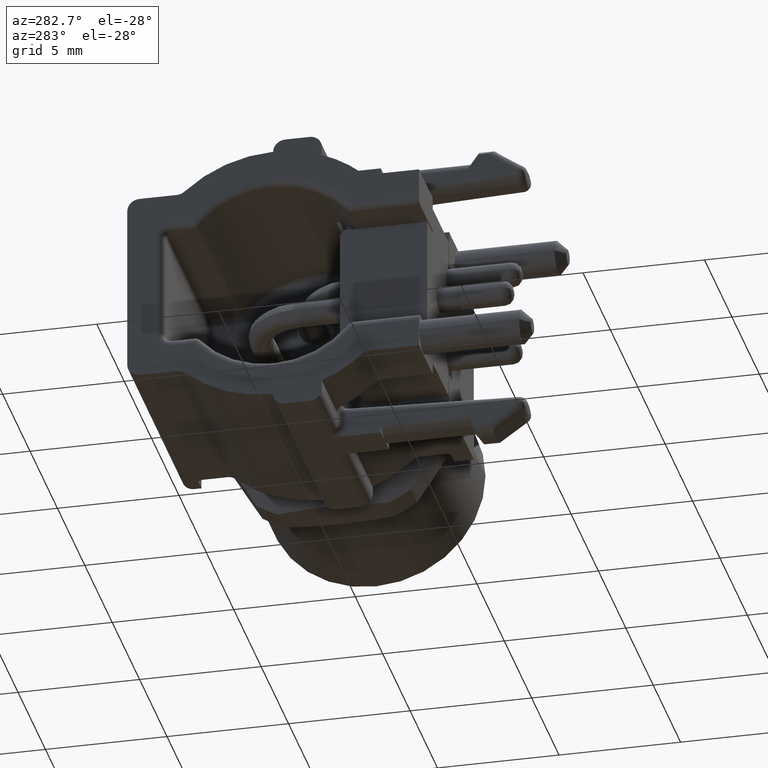
[diagram: clean part render]
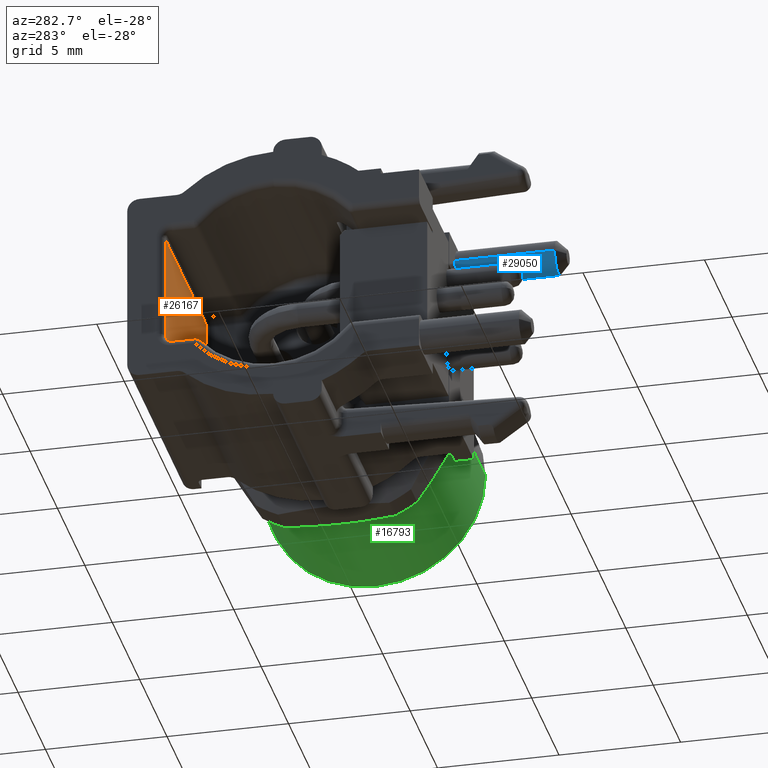
[diagram: same view with three faces highlighted in distinct colors, each labeled with its STEP entity id]
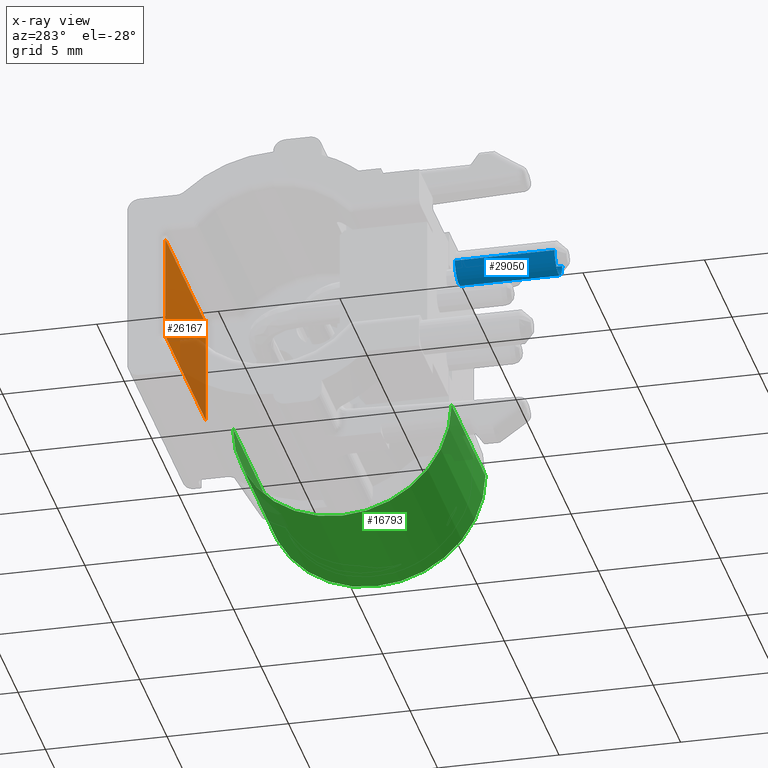
[diagram: x-ray of the same camera — body ghosted, the three highlighted faces saturated]
A machine part, auxiliary view with three faces highlighted in distinct colors.
The next image is the same camera in x-ray (body ghosted, the three faces saturated) — at least one of them is partly hidden behind the body in this view.
Their STEP definitions:

[orange] entity #26167 — the highlighted planar face has unit normal (0, -1, 0).
#9608=DIRECTION('',(0.E0,0.E0,1.E0));
#9609=VECTOR('',#9608,1.732283464567E-1);
#9610=CARTESIAN_POINT('',(-3.818897637795E-1,1.771653543307E-1,
-8.661417322835E-2));
#9611=LINE('',#9610,#9609);
#9883=DIRECTION('',(1.E0,0.E0,0.E0));
#9884=VECTOR('',#9883,2.913385826772E-1);
#9885=CARTESIAN_POINT('',(-3.818897637795E-1,1.771653543307E-1,
8.661417322835E-2));
#9886=LINE('',#9885,#9884);
#9895=DIRECTION('',(-1.E0,0.E0,0.E0));
#9896=VECTOR('',#9895,2.913385826772E-1);
#9897=CARTESIAN_POINT('',(-9.055118110236E-2,1.771653543307E-1,
-8.661417322835E-2));
#9898=LINE('',#9897,#9896);
#9926=DIRECTION('',(0.E0,0.E0,-1.E0));
#9927=VECTOR('',#9926,1.732283464567E-1);
#9928=CARTESIAN_POINT('',(-9.055118110236E-2,1.771653543307E-1,
8.661417322835E-2));
#9929=LINE('',#9928,#9927);
#12268=CARTESIAN_POINT('',(-3.818897637795E-1,1.771653543307E-1,
-8.661417322835E-2));
#12269=CARTESIAN_POINT('',(-3.818897637795E-1,1.771653543307E-1,
8.661417322835E-2));
#12270=VERTEX_POINT('',#12268);
#12271=VERTEX_POINT('',#12269);
#12272=CARTESIAN_POINT('',(-9.055118110236E-2,1.771653543307E-1,
8.661417322835E-2));
#12273=VERTEX_POINT('',#12272);
#12274=CARTESIAN_POINT('',(-9.055118110236E-2,1.771653543307E-1,
-8.661417322835E-2));
#12275=VERTEX_POINT('',#12274);
#26154=CARTESIAN_POINT('',(-7.874015748031E-2,1.771653543307E-1,
-9.842519685039E-2));
#26155=DIRECTION('',(0.E0,-1.E0,0.E0));
#26156=DIRECTION('',(-1.E0,0.E0,0.E0));
#26157=AXIS2_PLACEMENT_3D('',#26154,#26155,#26156);
#26158=PLANE('',#26157);
#26160=ORIENTED_EDGE('',*,*,#26159,.T.);
#26161=ORIENTED_EDGE('',*,*,#25768,.T.);
#26162=ORIENTED_EDGE('',*,*,#26145,.T.);
#26164=ORIENTED_EDGE('',*,*,#26163,.T.);
#26165=EDGE_LOOP('',(#26160,#26161,#26162,#26164));
#26166=FACE_OUTER_BOUND('',#26165,.F.);
#26167=ADVANCED_FACE('',(#26166),#26158,.T.);
#25768=EDGE_CURVE('',#12270,#12271,#9611,.T.);
#26145=EDGE_CURVE('',#12271,#12273,#9886,.T.);
#26159=EDGE_CURVE('',#12275,#12270,#9898,.T.);
#26163=EDGE_CURVE('',#12273,#12275,#9929,.T.);

[blue] entity #29050 — the highlighted cylindrical surface (edge-blend (fillet) strip) has radius 0.7 mm, axis along (0, 1, 0).
#4703=CARTESIAN_POINT('',(-1.082677165354E-1,-2.362204724409E-1,
1.279527559055E-1));
#4704=DIRECTION('',(0.E0,1.E0,0.E0));
#4705=DIRECTION('',(1.E0,0.E0,0.E0));
#4706=AXIS2_PLACEMENT_3D('',#4703,#4704,#4705);
#10827=DIRECTION('',(0.E0,-1.E0,0.E0));
#10828=VECTOR('',#10827,1.614173228346E-1);
#10829=CARTESIAN_POINT('',(-8.070866141732E-2,-2.362204724409E-1,
1.279527559055E-1));
#10830=LINE('',#10829,#10828);
#10831=DIRECTION('',(0.E0,-1.E0,0.E0));
#10832=VECTOR('',#10831,1.614173228346E-1);
#10833=CARTESIAN_POINT('',(-1.358267716535E-1,-2.362204724409E-1,
1.279527559055E-1));
#10834=LINE('',#10833,#10832);
#10848=CARTESIAN_POINT('',(-1.082677165354E-1,-3.976377952756E-1,
1.279527559055E-1));
#10849=DIRECTION('',(0.E0,-1.E0,0.E0));
#10850=DIRECTION('',(-1.E0,0.E0,0.E0));
#10851=AXIS2_PLACEMENT_3D('',#10848,#10849,#10850);
#12199=CARTESIAN_POINT('',(-1.358267716535E-1,-2.362204724409E-1,
1.279527559055E-1));
#12200=CARTESIAN_POINT('',(-8.070866141732E-2,-2.362204724409E-1,
1.279527559055E-1));
#12201=VERTEX_POINT('',#12199);
#12202=VERTEX_POINT('',#12200);
#12417=CARTESIAN_POINT('',(-1.358267716535E-1,-3.976377952756E-1,
1.279527559055E-1));
#12418=VERTEX_POINT('',#12417);
#12419=CARTESIAN_POINT('',(-8.070866141732E-2,-3.976377952756E-1,
1.279527559055E-1));
#12420=VERTEX_POINT('',#12419);
#29036=CARTESIAN_POINT('',(-1.082677165354E-1,-4.133858267717E-1,
1.279527559055E-1));
#29037=DIRECTION('',(0.E0,1.E0,0.E0));
#29038=DIRECTION('',(-1.E0,0.E0,0.E0));
#29039=AXIS2_PLACEMENT_3D('',#29036,#29037,#29038);
#29040=CYLINDRICAL_SURFACE('',#29039,2.755905511811E-2);
#29041=ORIENTED_EDGE('',*,*,#19003,.T.);
#29043=ORIENTED_EDGE('',*,*,#29042,.T.);
#29045=ORIENTED_EDGE('',*,*,#29044,.T.);
#29047=ORIENTED_EDGE('',*,*,#29046,.F.);
#29048=EDGE_LOOP('',(#29041,#29043,#29045,#29047));
#29049=FACE_OUTER_BOUND('',#29048,.F.);
#29050=ADVANCED_FACE('',(#29049),#29040,.T.);
#4707=CIRCLE('',#4706,2.755905511811E-2);
#10852=CIRCLE('',#10851,2.755905511811E-2);
#19003=EDGE_CURVE('',#12202,#12201,#4707,.T.);
#29042=EDGE_CURVE('',#12201,#12418,#10834,.T.);
#29044=EDGE_CURVE('',#12418,#12420,#10852,.T.);
#29046=EDGE_CURVE('',#12202,#12420,#10830,.T.);

[green] entity #16793 — the highlighted cylindrical surface (partial cylindrical patch) has radius 4.5 mm, axis along (-1, 0, 0).
#2220=CARTESIAN_POINT('',(3.464566929134E-1,0.E0,0.E0));
#2221=DIRECTION('',(-1.E0,0.E0,0.E0));
#2222=DIRECTION('',(0.E0,9.999999998665E-1,-1.634020328885E-5));
#2223=AXIS2_PLACEMENT_3D('',#2220,#2221,#2222);
#2225=CARTESIAN_POINT('',(1.023622047244E-1,0.E0,0.E0));
#2226=DIRECTION('',(-1.E0,0.E0,0.E0));
#2227=DIRECTION('',(0.E0,9.999999998665E-1,-1.634020328885E-5));
#2228=AXIS2_PLACEMENT_3D('',#2225,#2226,#2227);
#2230=CARTESIAN_POINT('',(1.023622047244E-1,0.E0,0.E0));
#2231=DIRECTION('',(-1.E0,0.E0,0.E0));
#2232=DIRECTION('',(0.E0,-1.634020328879E-5,-9.999999998665E-1));
#2233=AXIS2_PLACEMENT_3D('',#2230,#2231,#2232);
#2248=DIRECTION('',(-1.E0,-2.904792893668E-12,1.477944310154E-10));
#2249=VECTOR('',#2248,2.440944881897E-1);
#2250=CARTESIAN_POINT('',(3.464566929141E-1,-1.771653543063E-1,
2.894911356985E-6));
#2251=LINE('',#2250,#2249);
#2262=DIRECTION('',(-1.E0,2.907180768512E-12,9.414000668854E-11));
#2263=VECTOR('',#2262,2.440944881897E-1);
#2264=CARTESIAN_POINT('',(3.464566929141E-1,1.771653543063E-1,
-2.894911357233E-6));
#2265=LINE('',#2264,#2263);
#13720=CARTESIAN_POINT('',(1.023622047244E-1,-2.894917905440E-6,
-1.771653543071E-1));
#13721=CARTESIAN_POINT('',(1.023622047244E-1,-1.771653543071E-1,
2.894917905238E-6));
#13722=VERTEX_POINT('',#13720);
#13723=VERTEX_POINT('',#13721);
#13724=CARTESIAN_POINT('',(1.023622047244E-1,1.771653543071E-1,
-2.894917905749E-6));
#13725=VERTEX_POINT('',#13724);
#13818=CARTESIAN_POINT('',(3.464566929134E-1,-1.771653543071E-1,
2.894917905390E-6));
#13819=CARTESIAN_POINT('',(3.464566929134E-1,1.771653543071E-1,
-2.894917905640E-6));
#13820=VERTEX_POINT('',#13818);
#13821=VERTEX_POINT('',#13819);
#16777=CARTESIAN_POINT('',(3.75E-1,0.E0,0.E0));
#16778=DIRECTION('',(-1.E0,0.E0,0.E0));
#16779=DIRECTION('',(0.E0,9.999999998665E-1,-1.634020328885E-5));
#16780=AXIS2_PLACEMENT_3D('',#16777,#16778,#16779);
#16781=CYLINDRICAL_SURFACE('',#16780,1.771653543307E-1);
#16783=ORIENTED_EDGE('',*,*,#16782,.F.);
#16785=ORIENTED_EDGE('',*,*,#16784,.T.);
#16786=ORIENTED_EDGE('',*,*,#16759,.T.);
#16788=ORIENTED_EDGE('',*,*,#16787,.T.);
#16790=ORIENTED_EDGE('',*,*,#16789,.F.);
#16791=EDGE_LOOP('',(#16783,#16785,#16786,#16788,#16790));
#16792=FACE_OUTER_BOUND('',#16791,.F.);
#16793=ADVANCED_FACE('',(#16792),#16781,.T.);
#2224=CIRCLE('',#2223,1.771653543307E-1);
#2229=CIRCLE('',#2228,1.771653543307E-1);
#2234=CIRCLE('',#2233,1.771653543307E-1);
#16759=EDGE_CURVE('',#13725,#13722,#2229,.T.);
#16782=EDGE_CURVE('',#13821,#13820,#2224,.T.);
#16784=EDGE_CURVE('',#13821,#13725,#2265,.T.);
#16787=EDGE_CURVE('',#13722,#13723,#2234,.T.);
#16789=EDGE_CURVE('',#13820,#13723,#2251,.T.);